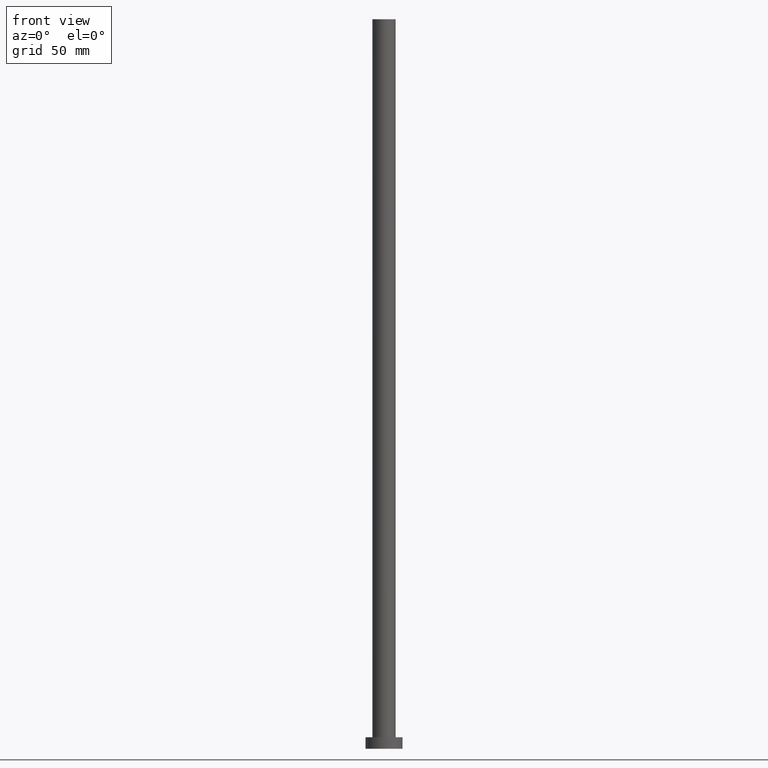
[diagram: clean part render]
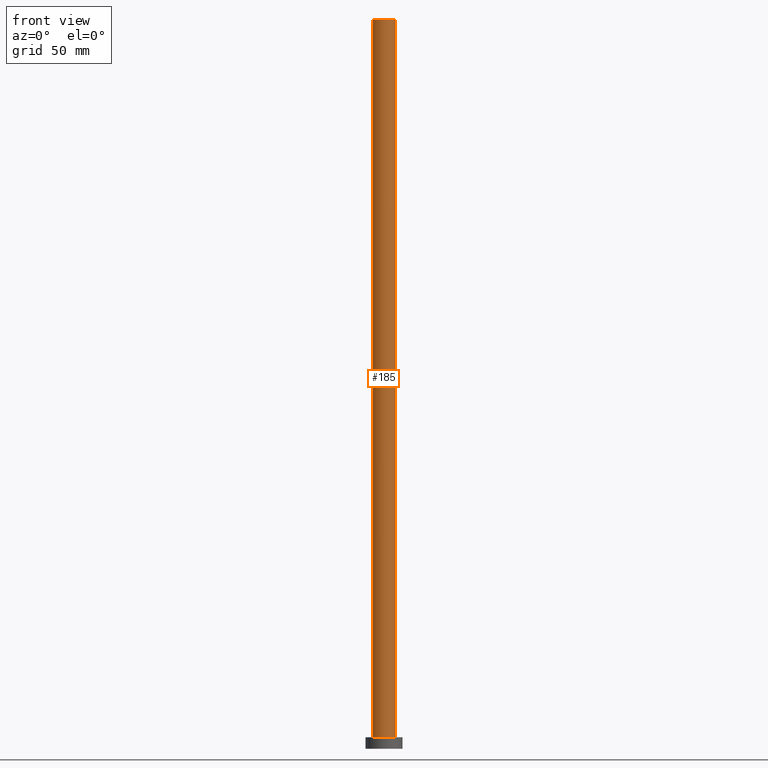
[diagram: same view with one face highlighted and labeled with its STEP entity id]
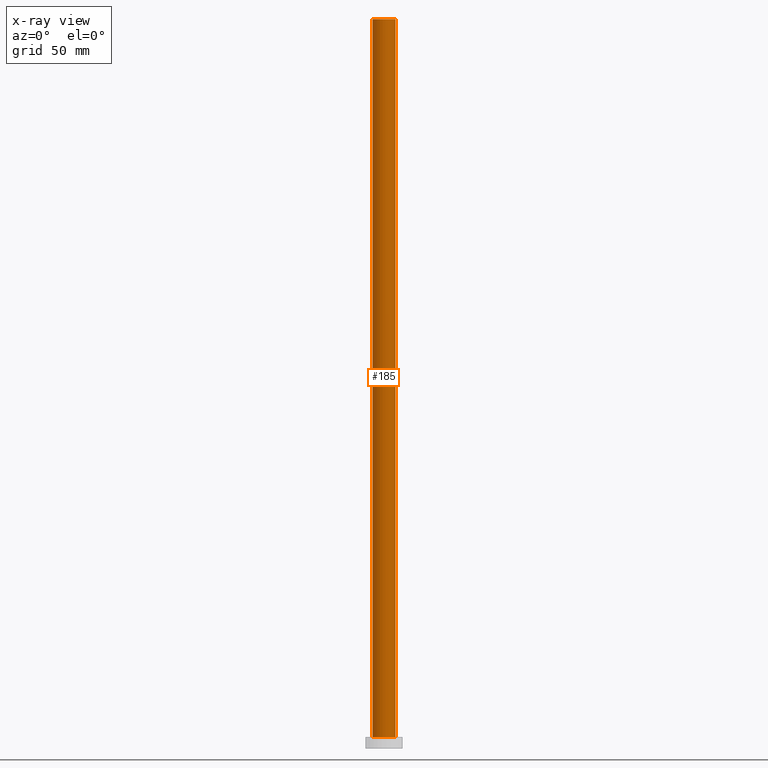
[diagram: x-ray of the same camera — body ghosted, the highlighted face saturated]
A machine part, front view. The second image highlights one B-rep face of the part: STEP entity #185.
The next image is the same camera in x-ray: the body ghosted, the highlighted face saturated — about 0% of this face is hidden behind the body in this view.
In plain terms, the highlighted cylindrical surface (edge-blend (fillet) strip) has radius 5 mm, axis along (-0, -0, -1).
Its self-contained STEP definition (entity closure, byte-faithful):
#7 = ORIENTED_EDGE ( 'NONE', *, *, #33, .T. ) ;
#14 = LINE ( 'NONE', #90, #73 ) ;
#22 = EDGE_CURVE ( 'NONE', #215, #153, #176, .T. ) ;
#28 = DIRECTION ( 'NONE',  ( -0.000000000000000000, -0.000000000000000000, -1.000000000000000000 ) ) ;
#33 = EDGE_CURVE ( 'NONE', #153, #157, #117, .T. ) ;
#34 = DIRECTION ( 'NONE',  ( -0.000000000000000000, -0.000000000000000000, -1.000000000000000000 ) ) ;
#35 = AXIS2_PLACEMENT_3D ( 'NONE', #113, #190, #131 ) ;
#45 = EDGE_CURVE ( 'NONE', #215, #64, #141, .T. ) ;
#46 = EDGE_LOOP ( 'NONE', ( #57, #134, #100, #7 ) ) ;
#47 = CARTESIAN_POINT ( 'NONE',  ( 0.000000000000000000, 0.000000000000000000, 5.000000000000000000 ) ) ;
#57 = ORIENTED_EDGE ( 'NONE', *, *, #180, .F. ) ;
#64 = VERTEX_POINT ( 'NONE', #126 ) ;
#73 = VECTOR ( 'NONE', #34, 1000.000000000000000 ) ;
#90 = CARTESIAN_POINT ( 'NONE',  ( 5.000000000000000888, 6.123233995736767268E-16, 315.0000000000000000 ) ) ;
#93 = CARTESIAN_POINT ( 'NONE',  ( -5.000000000000000888, 0.000000000000000000, 315.0000000000000000 ) ) ;
#98 = DIRECTION ( 'NONE',  ( 0.000000000000000000, 0.000000000000000000, 1.000000000000000000 ) ) ;
#100 = ORIENTED_EDGE ( 'NONE', *, *, #22, .T. ) ;
#106 = AXIS2_PLACEMENT_3D ( 'NONE', #47, #98, #147 ) ;
#113 = CARTESIAN_POINT ( 'NONE',  ( 0.000000000000000000, 0.000000000000000000, 315.0000000000000000 ) ) ;
#117 = CIRCLE ( 'NONE', #106, 5.000000000000000888 ) ;
#126 = CARTESIAN_POINT ( 'NONE',  ( 5.000000000000000888, 6.123233995736767268E-16, 315.0000000000000000 ) ) ;
#131 = DIRECTION ( 'NONE',  ( -1.000000000000000000, 0.000000000000000000, 0.000000000000000000 ) ) ;
#134 = ORIENTED_EDGE ( 'NONE', *, *, #45, .F. ) ;
#138 = DIRECTION ( 'NONE',  ( 0.000000000000000000, 0.000000000000000000, 1.000000000000000000 ) ) ;
#141 = CIRCLE ( 'NONE', #211, 5.000000000000000888 ) ;
#147 = DIRECTION ( 'NONE',  ( 1.000000000000000000, 0.000000000000000000, 0.000000000000000000 ) ) ;
#153 = VERTEX_POINT ( 'NONE', #251 ) ;
#157 = VERTEX_POINT ( 'NONE', #250 ) ;
#170 = CYLINDRICAL_SURFACE ( 'NONE', #35, 5.000000000000000888 ) ;
#176 = LINE ( 'NONE', #221, #227 ) ;
#180 = EDGE_CURVE ( 'NONE', #64, #157, #14, .T. ) ;
#185 = ADVANCED_FACE ( 'NONE', ( #225 ), #170, .T. ) ;
#190 = DIRECTION ( 'NONE',  ( -0.000000000000000000, -0.000000000000000000, -1.000000000000000000 ) ) ;
#211 = AXIS2_PLACEMENT_3D ( 'NONE', #224, #138, #245 ) ;
#215 = VERTEX_POINT ( 'NONE', #93 ) ;
#221 = CARTESIAN_POINT ( 'NONE',  ( -5.000000000000000888, 0.000000000000000000, 315.0000000000000000 ) ) ;
#224 = CARTESIAN_POINT ( 'NONE',  ( 0.000000000000000000, 0.000000000000000000, 315.0000000000000000 ) ) ;
#225 = FACE_OUTER_BOUND ( 'NONE', #46, .T. ) ;
#227 = VECTOR ( 'NONE', #28, 1000.000000000000000 ) ;
#245 = DIRECTION ( 'NONE',  ( 1.000000000000000000, 0.000000000000000000, 0.000000000000000000 ) ) ;
#250 = CARTESIAN_POINT ( 'NONE',  ( 5.000000000000000888, 6.123233995736767268E-16, 5.000000000000000000 ) ) ;
#251 = CARTESIAN_POINT ( 'NONE',  ( -5.000000000000000888, 0.000000000000000000, 5.000000000000000000 ) ) ;